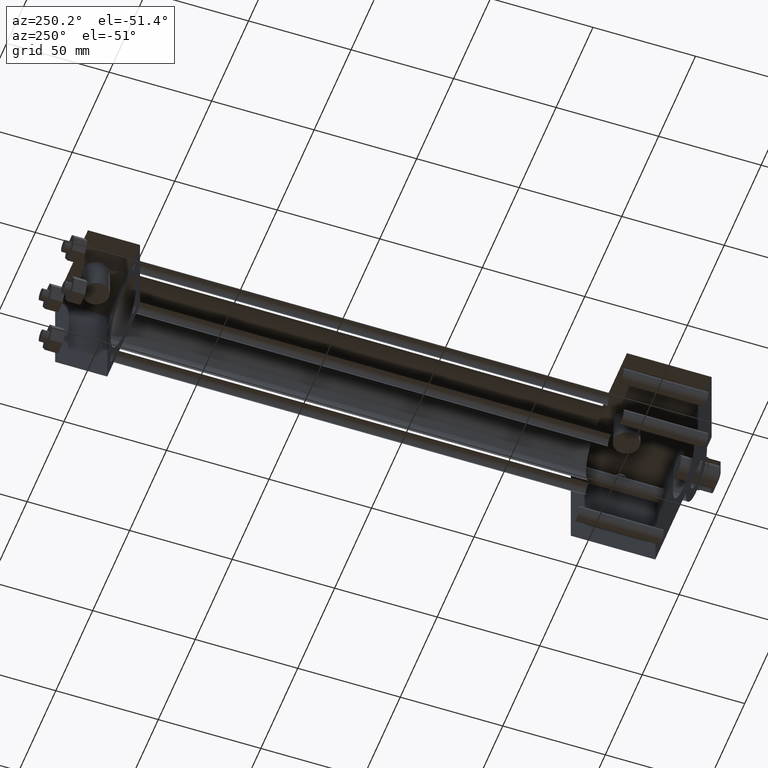
[diagram: clean part render]
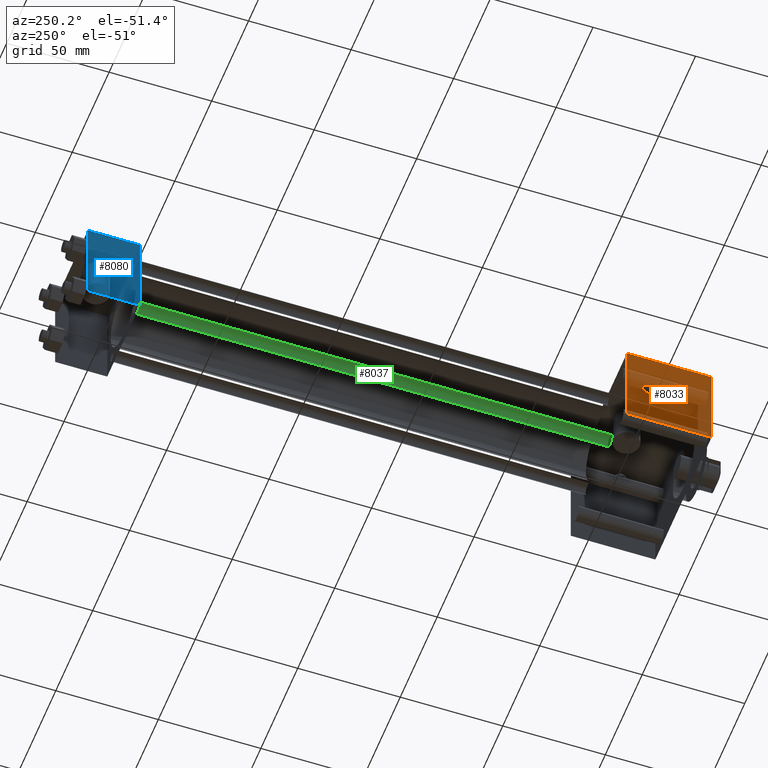
[diagram: same view with three faces highlighted in distinct colors, each labeled with its STEP entity id]
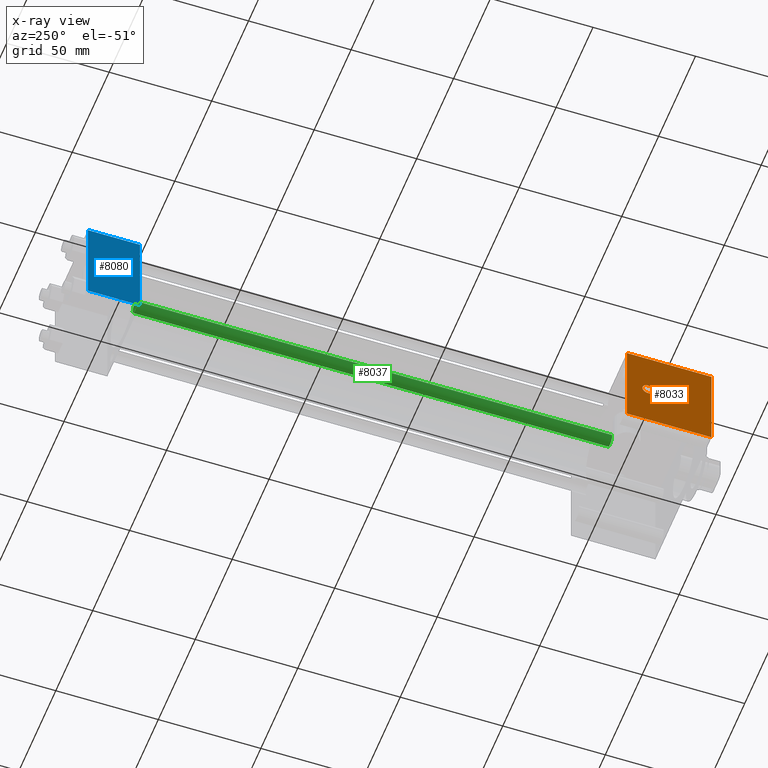
[diagram: x-ray of the same camera — body ghosted, the three highlighted faces saturated]
A machine part, auxiliary view with three faces highlighted in distinct colors.
The next image is the same camera in x-ray (body ghosted, the three faces saturated) — at least one of them is partly hidden behind the body in this view.
Their STEP definitions:

[orange] entity #8033 — the highlighted planar face has unit normal (-1, 0, 0).
#491=EDGE_CURVE('',#497,#497,#492,.T.);
#492=CIRCLE('',#493,2.778125000E+000);
#493=AXIS2_PLACEMENT_3D('',#494,#495,#496);
#494=CARTESIAN_POINT('',(-3.810000000E+001,4.683125000E+001,0.000000000E+000));
#495=DIRECTION('',(1.0E+000,0.0E+000,0.0E+000));
#496=DIRECTION('',(0.0E+000,-1.0E+000,0.0E+000));
#497=VERTEX_POINT('',#498);
#498=CARTESIAN_POINT('',(-3.810000000E+001,4.405312500E+001,0.000000000E+000));
#743=VERTEX_POINT('',#745);
#745=CARTESIAN_POINT('',(-3.810000000E+001,1.587500000E+001,-2.222500000E+001));
#759=VERTEX_POINT('',#760);
#760=CARTESIAN_POINT('',(-3.810000000E+001,1.587500000E+001,2.222500000E+001));
#761=EDGE_CURVE('',#759,#743,#762,.T.);
#762=LINE('',#763,#764);
#763=CARTESIAN_POINT('',(-3.810000000E+001,1.587500000E+001,2.222500000E+001));
#764=VECTOR('',#765,1.0E+000);
#765=DIRECTION('',(0.0E+000,0.0E+000,-1.0E+000));
#779=EDGE_CURVE('',#784,#759,#780,.T.);
#780=LINE('',#781,#782);
#781=CARTESIAN_POINT('',(-3.810000000E+001,5.715000000E+001,2.222500000E+001));
#782=VECTOR('',#783,1.0E+000);
#783=DIRECTION('',(0.0E+000,-1.0E+000,0.0E+000));
#784=VERTEX_POINT('',#785);
#785=CARTESIAN_POINT('',(-3.810000000E+001,5.715000000E+001,2.222500000E+001));
#819=EDGE_CURVE('',#824,#743,#820,.T.);
#820=LINE('',#821,#822);
#821=CARTESIAN_POINT('',(-3.810000000E+001,5.715000000E+001,-2.222500000E+001));
#822=VECTOR('',#823,1.0E+000);
#823=DIRECTION('',(0.0E+000,-1.0E+000,0.0E+000));
#824=VERTEX_POINT('',#825);
#825=CARTESIAN_POINT('',(-3.810000000E+001,5.715000000E+001,-2.222500000E+001));
#856=FACE_OUTER_BOUND('',#858,.T.);
#857=FACE_BOUND('',#859,.T.);
#858=EDGE_LOOP('',(#860,#861,#862,#863));
#859=EDGE_LOOP('',(#869));
#860=ORIENTED_EDGE('',*,*,#864,.T.);
#861=ORIENTED_EDGE('',*,*,#819,.T.);
#862=ORIENTED_EDGE('',*,*,#761,.F.);
#863=ORIENTED_EDGE('',*,*,#779,.F.);
#864=EDGE_CURVE('',#784,#824,#865,.T.);
#865=LINE('',#866,#867);
#866=CARTESIAN_POINT('',(-3.810000000E+001,5.715000000E+001,2.222500000E+001));
#867=VECTOR('',#868,1.0E+000);
#868=DIRECTION('',(0.0E+000,0.0E+000,-1.0E+000));
#869=ORIENTED_EDGE('',*,*,#491,.T.);
#870=PLANE('',#871);
#871=AXIS2_PLACEMENT_3D('',#872,#873,#874);
#872=CARTESIAN_POINT('',(-3.810000000E+001,5.715000000E+001,2.222500000E+001));
#873=DIRECTION('',(-1.0E+000,0.0E+000,0.0E+000));
#874=DIRECTION('',(0.0E+000,0.0E+000,1.0E+000));
#8033=ADVANCED_FACE('',(#856,#857),#870,.T.);

[blue] entity #8080 — the highlighted planar face has unit normal (-1, 0, 0).
#2211=VERTEX_POINT('',#2213);
#2213=CARTESIAN_POINT('',(-2.222500000E+001,3.143250000E+002,-2.222500000E+001));
#2215=EDGE_CURVE('',#2220,#2211,#2216,.T.);
#2216=LINE('',#2217,#2218);
#2217=CARTESIAN_POINT('',(-2.222500000E+001,3.143250000E+002,2.222500000E+001));
#2218=VECTOR('',#2219,1.0E+000);
#2219=DIRECTION('',(0.0E+000,0.0E+000,-1.0E+000));
#2220=VERTEX_POINT('',#2221);
#2221=CARTESIAN_POINT('',(-2.222500000E+001,3.143250000E+002,2.222500000E+001));
#2384=VERTEX_POINT('',#2386);
#2386=CARTESIAN_POINT('',(-2.222500000E+001,2.889250000E+002,-2.222500000E+001));
#2400=VERTEX_POINT('',#2401);
#2401=CARTESIAN_POINT('',(-2.222500000E+001,2.889250000E+002,2.222500000E+001));
#2402=EDGE_CURVE('',#2400,#2384,#2403,.T.);
#2403=LINE('',#2404,#2405);
#2404=CARTESIAN_POINT('',(-2.222500000E+001,2.889250000E+002,2.222500000E+001));
#2405=VECTOR('',#2406,1.0E+000);
#2406=DIRECTION('',(0.0E+000,0.0E+000,-1.0E+000));
#2429=EDGE_CURVE('',#2211,#2384,#2430,.T.);
#2430=LINE('',#2431,#2432);
#2431=CARTESIAN_POINT('',(-2.222500000E+001,3.143250000E+002,-2.222500000E+001));
#2432=VECTOR('',#2433,1.0E+000);
#2433=DIRECTION('',(0.0E+000,-1.0E+000,0.0E+000));
#2466=EDGE_CURVE('',#2220,#2400,#2467,.T.);
#2467=LINE('',#2468,#2469);
#2468=CARTESIAN_POINT('',(-2.222500000E+001,3.143250000E+002,2.222500000E+001));
#2469=VECTOR('',#2470,1.0E+000);
#2470=DIRECTION('',(0.0E+000,-1.0E+000,0.0E+000));
#2485=FACE_OUTER_BOUND('',#2487,.T.);
#2486=FACE_BOUND('',#2488,.T.);
#2487=EDGE_LOOP('',(#2489,#2490,#2491,#2492));
#2488=EDGE_LOOP('',(#2493));
#2489=ORIENTED_EDGE('',*,*,#2402,.F.);
#2490=ORIENTED_EDGE('',*,*,#2466,.F.);
#2491=ORIENTED_EDGE('',*,*,#2215,.T.);
#2492=ORIENTED_EDGE('',*,*,#2429,.T.);
#2493=ORIENTED_EDGE('',*,*,#2494,.T.);
#2494=EDGE_CURVE('',#2500,#2500,#2495,.T.);
#2495=CIRCLE('',#2496,2.778125000E+000);
#2496=AXIS2_PLACEMENT_3D('',#2497,#2498,#2499);
#2497=CARTESIAN_POINT('',(-2.222500000E+001,3.024187500E+002,0.000000000E+000));
#2498=DIRECTION('',(1.0E+000,0.0E+000,0.0E+000));
#2499=DIRECTION('',(0.0E+000,-1.0E+000,0.0E+000));
#2500=VERTEX_POINT('',#2501);
#2501=CARTESIAN_POINT('',(-2.222500000E+001,2.996406250E+002,0.000000000E+000));
#2502=PLANE('',#2503);
#2503=AXIS2_PLACEMENT_3D('',#2504,#2505,#2506);
#2504=CARTESIAN_POINT('',(-2.222500000E+001,3.143250000E+002,2.222500000E+001));
#2505=DIRECTION('',(-1.0E+000,0.0E+000,0.0E+000));
#2506=DIRECTION('',(0.0E+000,0.0E+000,1.0E+000));
#8080=ADVANCED_FACE('',(#2485,#2486),#2502,.T.);

[green] entity #8037 — the highlighted cylindrical surface (bore or boss wall) has radius 2.8575 mm, axis along (0, -1, 0).
#889=EDGE_CURVE('',#895,#895,#890,.T.);
#890=CIRCLE('',#891,2.857500000E+000);
#891=AXIS2_PLACEMENT_3D('',#892,#893,#894);
#892=CARTESIAN_POINT('',(-1.511300000E+001,5.715000000E+001,-1.511300000E+001));
#893=DIRECTION('',(0.0E+000,1.0E+000,0.0E+000));
#894=DIRECTION('',(1.0E+000,0.0E+000,0.0E+000));
#895=VERTEX_POINT('',#896);
#896=CARTESIAN_POINT('',(-1.225550000E+001,5.715000000E+001,-1.511300000E+001));
#1075=FACE_OUTER_BOUND('',#1077,.T.);
#1076=FACE_BOUND('',#1078,.T.);
#1077=EDGE_LOOP('',(#1079));
#1078=EDGE_LOOP('',(#1080));
#1079=ORIENTED_EDGE('',*,*,#1124,.F.);
#1080=ORIENTED_EDGE('',*,*,#889,.T.);
#1081=CYLINDRICAL_SURFACE('',#1082,2.857500000E+000);
#1082=AXIS2_PLACEMENT_3D('',#1083,#1084,#1085);
#1083=CARTESIAN_POINT('',(-1.511300000E+001,2.889250000E+002,-1.511300000E+001));
#1084=DIRECTION('',(0.0E+000,-1.0E+000,0.0E+000));
#1085=DIRECTION('',(0.0E+000,0.0E+000,-1.0E+000));
#1124=EDGE_CURVE('',#1130,#1130,#1125,.T.);
#1125=CIRCLE('',#1126,2.857500000E+000);
#1126=AXIS2_PLACEMENT_3D('',#1127,#1128,#1129);
#1127=CARTESIAN_POINT('',(-1.511300000E+001,2.889250000E+002,-1.511300000E+001));
#1128=DIRECTION('',(0.0E+000,1.0E+000,0.0E+000));
#1129=DIRECTION('',(1.0E+000,0.0E+000,0.0E+000));
#1130=VERTEX_POINT('',#1131);
#1131=CARTESIAN_POINT('',(-1.225550000E+001,2.889250000E+002,-1.511300000E+001));
#8037=ADVANCED_FACE('',(#1075,#1076),#1081,.T.);